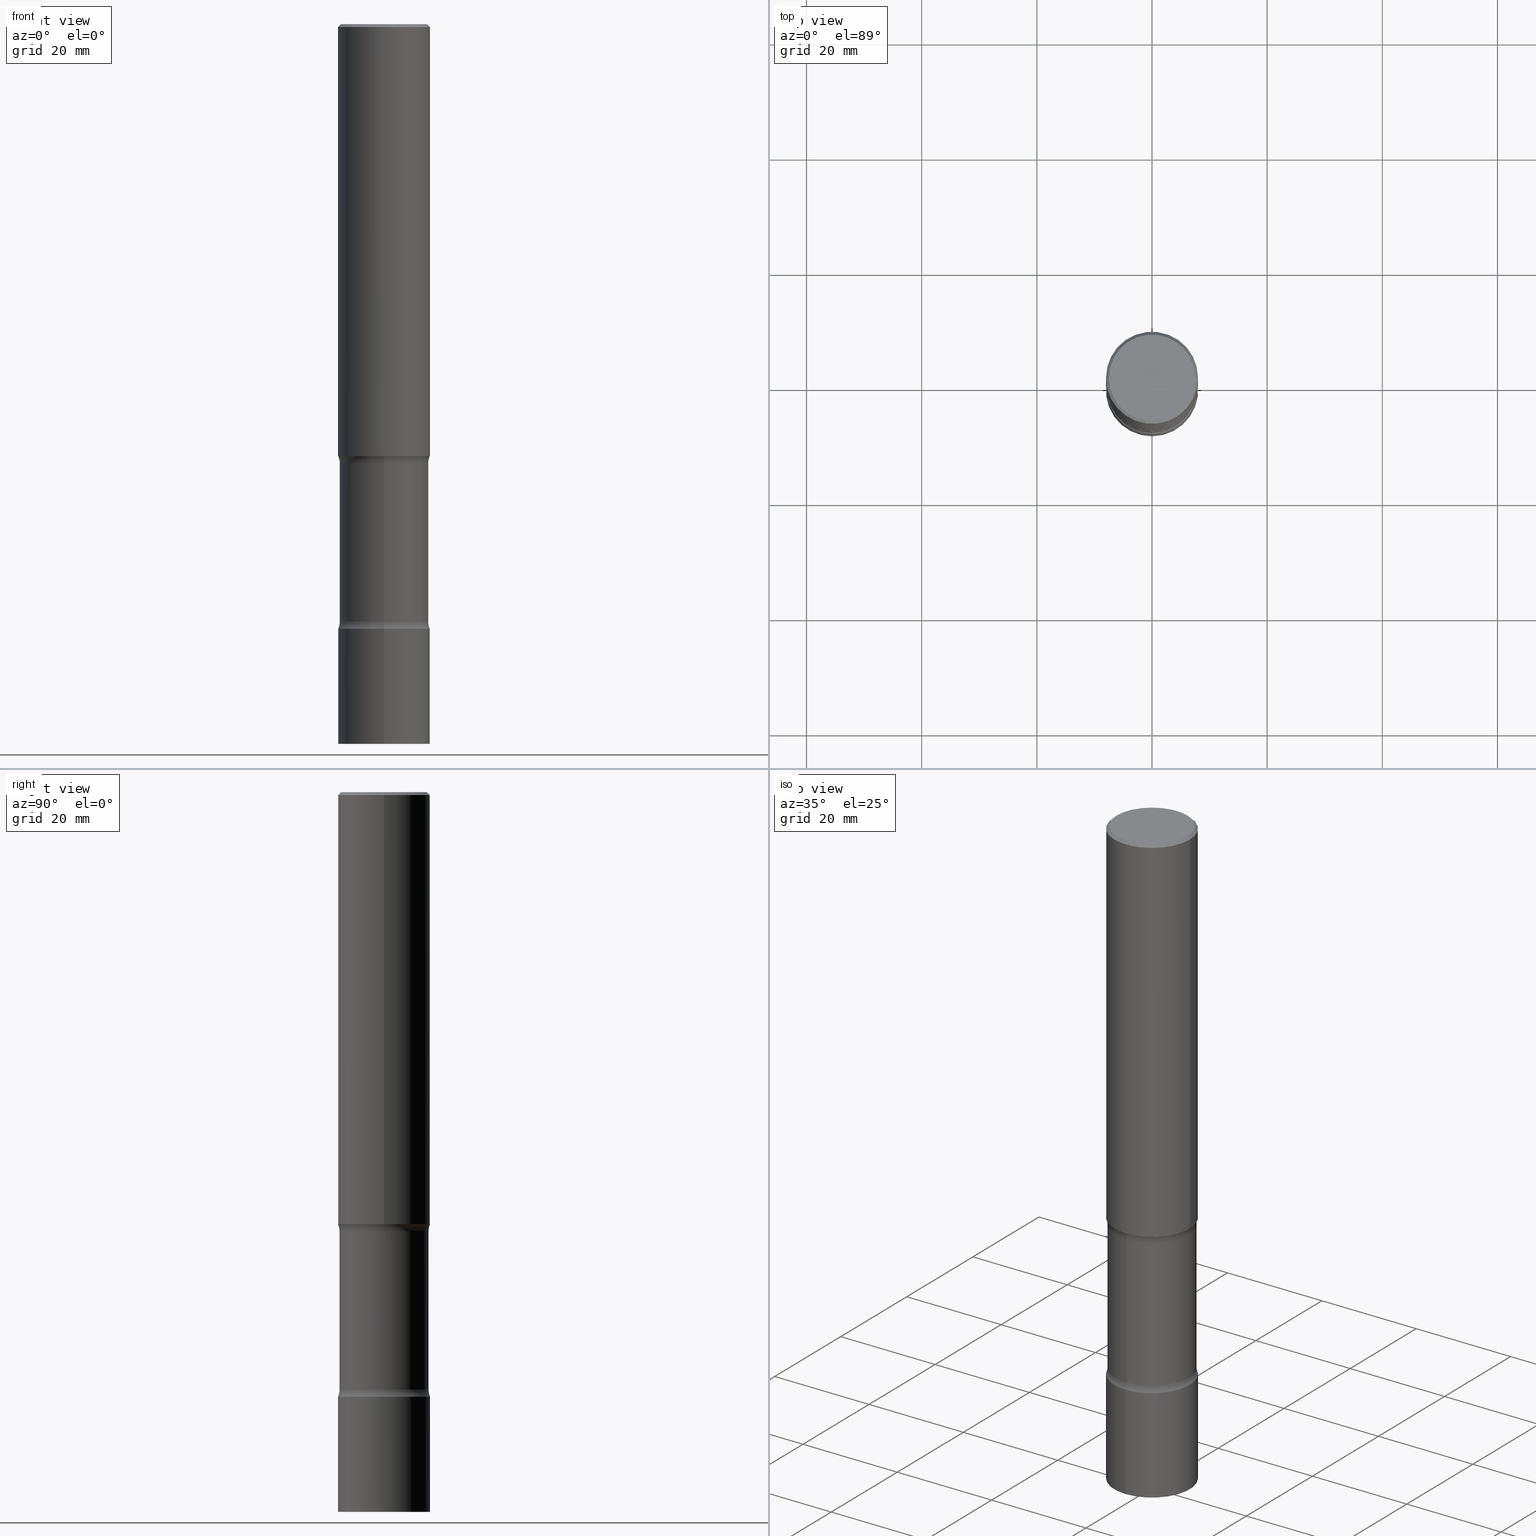
[diagram: canonical four-view strip — front | top / right | iso, engineering-drawing reading convention]
A machine part, canonical four-view strip (front | top / right | iso — engineering-drawing reading convention). The complete STEP part file that produces these views, byte-faithful:
ISO-10303-21;
HEADER;
FILE_DESCRIPTION (( 'STEP AP203' ),
    '1' );
FILE_NAME ('42710.STEP',
    '2024-03-11T13:32:46',
    ( '' ),
    ( '' ),
    'SwSTEP 2.0',
    'SolidWorks 2023',
    '' );
FILE_SCHEMA (( 'CONFIG_CONTROL_DESIGN' ));
ENDSEC;

DATA;
#1 = APPLICATION_PROTOCOL_DEFINITION ( 'international standard', 'config_control_design', 1994, #370 ) ;
#2 = CARTESIAN_POINT ( 'NONE',  ( 1.203946298913715486E-28, -1.717607208245619996E-14, -4.921299999999999564 ) ) ;
#3 = APPROVAL_STATUS ( 'not_yet_approved' ) ;
#4 = CARTESIAN_POINT ( 'NONE',  ( 1.010932349788873450E-28, -1.443343470664367755E-14, -4.133899999999999686 ) ) ;
#5 = SHAPE_DEFINITION_REPRESENTATION ( #73, #386 ) ;
#6 = DIRECTION ( 'NONE',  ( 2.446398916777508940E-29, -3.490149367536260622E-15, -1.000000000000000000 ) ) ;
#7 = EDGE_CURVE ( 'NONE', #234, #332, #438, .T. ) ;
#8 = CARTESIAN_POINT ( 'NONE',  ( 4.890937612370273159E-31, -6.982962677686291609E-17, -0.02000000000000000042 ) ) ;
#9 = EDGE_LOOP ( 'NONE', ( #26, #242 ) ) ;
#10 = APPROVAL_DATE_TIME ( #137, #71 ) ;
#11 = AXIS2_PLACEMENT_3D ( 'NONE', #166, #95, #19 ) ;
#12 = ORIENTED_EDGE ( 'NONE', *, *, #493, .T. ) ;
#13 = EDGE_CURVE ( 'NONE', #127, #64, #500, .T. ) ;
#14 = DIRECTION ( 'NONE',  ( 2.554481209903822320E-29, -3.335369372117288584E-15, -1.000000000000000000 ) ) ;
#15 = ORIENTED_EDGE ( 'NONE', *, *, #54, .F. ) ;
#16 = DIRECTION ( 'NONE',  ( -2.446398916777509220E-29, 3.490149367536260622E-15, 1.000000000000000000 ) ) ;
#17 = ORIENTED_EDGE ( 'NONE', *, *, #457, .F. ) ;
#18 = CC_DESIGN_PERSON_AND_ORGANIZATION_ASSIGNMENT ( #462, #265, ( #69 ) ) ;
#19 = DIRECTION ( 'NONE',  ( -1.000000000000000000, 6.982962677686266711E-15, 0.000000000000000000 ) ) ;
#20 = EDGE_LOOP ( 'NONE', ( #94, #467, #101, #92 ) ) ;
#21 = CIRCLE ( 'NONE', #495, 0.3149500000000000632 ) ;
#22 = CC_DESIGN_APPROVAL ( #71, ( #180 ) ) ;
#23 = DIRECTION ( 'NONE',  ( 6.982962677686265922E-15, 1.000000000000000000, -3.335369372117288584E-15 ) ) ;
#24 = DIRECTION ( 'NONE',  ( 1.000000000000000000, -6.982962677686265922E-15, 4.876176775795935232E-29 ) ) ;
#25 = DIRECTION ( 'NONE',  ( -2.446398916777509220E-29, 3.490149367536260622E-15, 1.000000000000000000 ) ) ;
#26 = ORIENTED_EDGE ( 'NONE', *, *, #427, .T. ) ;
#27 = ADVANCED_FACE ( 'NONE', ( #108 ), #118, .F. ) ;
#28 = CIRCLE ( 'NONE', #374, 0.1249999999999999584 ) ;
#29 = CARTESIAN_POINT ( 'NONE',  ( 7.220980290903469061E-29, -1.030964609733603695E-14, -2.952799999999998981 ) ) ;
#30 = DIRECTION ( 'NONE',  ( -2.445468806185136597E-29, 3.491481338843145583E-15, 1.000000000000000000 ) ) ;
#31 = DIRECTION ( 'NONE',  ( -1.000000000000000000, 6.982962677686265922E-15, -4.883557194083112340E-29 ) ) ;
#32 = DESIGN_CONTEXT ( 'detailed design', #437, 'design' ) ;
#33 = PERSON_AND_ORGANIZATION ( #217, #110 ) ;
#34 = DIRECTION ( 'NONE',  ( 2.438088387897960049E-29, -3.491481338843145188E-15, -1.000000000000000000 ) ) ;
#35 = AXIS2_PLACEMENT_3D ( 'NONE', #276, #476, #507 ) ;
#36 = LOCAL_TIME ( 9, 32, 46.00000000000000000, #160 ) ;
#37 = CARTESIAN_POINT ( 'NONE',  ( 4.890937612370273159E-31, -6.982962677686291609E-17, -0.02000000000000000042 ) ) ;
#38 = EDGE_CURVE ( 'NONE', #64, #361, #366, .T. ) ;
#39 = APPROVAL_STATUS ( 'not_yet_approved' ) ;
#40 = CARTESIAN_POINT ( 'NONE',  ( -2.199284095337289871E-15, -0.3149500000000000632, 1.099222543305545587E-15 ) ) ;
#41 = ORIENTED_EDGE ( 'NONE', *, *, #421, .F. ) ;
#42 = FACE_OUTER_BOUND ( 'NONE', #336, .T. ) ;
#43 = APPROVAL_STATUS ( 'not_yet_approved' ) ;
#44 = DIRECTION ( 'NONE',  ( -6.982962677686265922E-15, -1.000000000000000000, 3.335369372117288979E-15 ) ) ;
#45 = CIRCLE ( 'NONE', #472, 0.1249999999999999029 ) ;
#46 = PRODUCT_DEFINITION ( 'UNKNOWN', '', #69, #32 ) ;
#47 = CARTESIAN_POINT ( 'NONE',  ( -0.2949499999999997679, 2.094539655171993740E-15, 8.537024980186296424E-18 ) ) ;
#48 = EDGE_LOOP ( 'NONE', ( #212, #165 ) ) ;
#49 = DIRECTION ( 'NONE',  ( -6.982962677686265922E-15, -1.000000000000000000, 3.469564049740292375E-15 ) ) ;
#50 = ORIENTED_EDGE ( 'NONE', *, *, #7, .F. ) ;
#51 = DIRECTION ( 'NONE',  ( 2.554481209903822320E-29, -3.335369372117288584E-15, -1.000000000000000000 ) ) ;
#52 = AXIS2_PLACEMENT_3D ( 'NONE', #57, #356, #250 ) ;
#53 = ORIENTED_EDGE ( 'NONE', *, *, #353, .F. ) ;
#54 = EDGE_CURVE ( 'NONE', #492, #134, #218, .T. ) ;
#55 = CARTESIAN_POINT ( 'NONE',  ( 1.011316848206654349E-28, -1.442792847045814558E-14, -4.133899999999999686 ) ) ;
#56 = VERTEX_POINT ( 'NONE', #156 ) ;
#57 = CARTESIAN_POINT ( 'NONE',  ( -2.087702828670439639E-46, 2.980686340760894400E-32, 8.537024980200822558E-18 ) ) ;
#58 = EDGE_LOOP ( 'NONE', ( #53, #207, #323, #287 ) ) ;
#59 = CARTESIAN_POINT ( 'NONE',  ( 2.999531618200236480E-15, 0.4295499999999858876, -4.083981666694491253 ) ) ;
#60 = AXIS2_PLACEMENT_3D ( 'NONE', #306, #229, #504 ) ;
#61 = CIRCLE ( 'NONE', #496, 0.3149500000000002298 ) ;
#62 = VECTOR ( 'NONE', #120, 39.37007874015748143 ) ;
#63 = DIRECTION ( 'NONE',  ( 1.000000000000000000, -6.982962677686269866E-15, 0.000000000000000000 ) ) ;
#64 = VERTEX_POINT ( 'NONE', #72 ) ;
#65 = DIRECTION ( 'NONE',  ( 2.554481209903822320E-29, -3.335369372117288584E-15, -1.000000000000000000 ) ) ;
#66 = EDGE_CURVE ( 'NONE', #167, #157, #358, .T. ) ;
#67 = DIRECTION ( 'NONE',  ( 2.554481209903822320E-29, -3.335369372117288584E-15, -1.000000000000000000 ) ) ;
#68 = ORIENTED_EDGE ( 'NONE', *, *, #267, .T. ) ;
#69 = PRODUCT_DEFINITION_FORMATION_WITH_SPECIFIED_SOURCE ( 'ANY', '', #225, .NOT_KNOWN. ) ;
#70 = DIRECTION ( 'NONE',  ( 6.982962677686265922E-15, 1.000000000000000000, -3.469564049740292375E-15 ) ) ;
#71 = APPROVAL ( #39, 'UNSPECIFIED' ) ;
#72 = CARTESIAN_POINT ( 'NONE',  ( 2.126661283489454719E-15, 0.3045499999999861096, -4.083981666694490364 ) ) ;
#73 = PRODUCT_DEFINITION_SHAPE ( 'NONE', 'NONE',  #46 ) ;
#74 = ADVANCED_FACE ( 'NONE', ( #122 ), #352, .F. ) ;
#75 = PERSON_AND_ORGANIZATION ( #217, #110 ) ;
#76 = DIRECTION ( 'NONE',  ( -2.446398916777509220E-29, 3.490149367536260622E-15, 1.000000000000000000 ) ) ;
#77 = DATE_AND_TIME ( #194, #455 ) ;
#78 = AXIS2_PLACEMENT_3D ( 'NONE', #373, #258, #499 ) ;
#79 = LINE ( 'NONE', #425, #102 ) ;
#80 = EDGE_LOOP ( 'NONE', ( #330, #454, #402, #181 ) ) ;
#81 =( NAMED_UNIT ( * ) SI_UNIT ( $, .STERADIAN. ) SOLID_ANGLE_UNIT ( ) );
#82 = CARTESIAN_POINT ( 'NONE',  ( 0.3149499999999997302, -2.230543471175005083E-15, -0.02000000000000000042 ) ) ;
#83 = EDGE_CURVE ( 'NONE', #234, #134, #116, .T. ) ;
#84 = COORDINATED_UNIVERSAL_TIME_OFFSET ( 5, 0, .BEHIND. ) ;
#85 = DIRECTION ( 'NONE',  ( -2.445468806185136877E-29, 3.491481338843145188E-15, 1.000000000000000000 ) ) ;
#86 = CIRCLE ( 'NONE', #335, 0.3149500000000000632 ) ;
#87 = DIRECTION ( 'NONE',  ( -2.446398916777509220E-29, 3.490149367536260622E-15, 1.000000000000000000 ) ) ;
#88 = AXIS2_PLACEMENT_3D ( 'NONE', #8, #316, #364 ) ;
#89 = VERTEX_POINT ( 'NONE', #274 ) ;
#90 = APPROVAL ( #43, 'UNSPECIFIED' ) ;
#91 = LINE ( 'NONE', #484, #416 ) ;
#92 = ORIENTED_EDGE ( 'NONE', *, *, #315, .F. ) ;
#93 = DIRECTION ( 'NONE',  ( -2.446398916777509500E-29, 3.490149367536260622E-15, 1.000000000000000000 ) ) ;
#94 = ORIENTED_EDGE ( 'NONE', *, *, #351, .F. ) ;
#95 = DIRECTION ( 'NONE',  ( 2.445468806185136597E-29, -3.491481338843145583E-15, -1.000000000000000000 ) ) ;
#96 = AXIS2_PLACEMENT_3D ( 'NONE', #322, #478, #354 ) ;
#97 = ORIENTED_EDGE ( 'NONE', *, *, #268, .T. ) ;
#98 = AXIS2_PLACEMENT_3D ( 'NONE', #413, #333, #453 ) ;
#99 = DIRECTION ( 'NONE',  ( 2.554481209903822320E-29, -3.335369372117288584E-15, -1.000000000000000000 ) ) ;
#100 = ORIENTED_EDGE ( 'NONE', *, *, #227, .F. ) ;
#101 = ORIENTED_EDGE ( 'NONE', *, *, #143, .T. ) ;
#102 = VECTOR ( 'NONE', #85, 39.37007874015748143 ) ;
#103 = TOROIDAL_SURFACE ( 'NONE', #161, 0.4295500000000001539, 0.1249999999999999445 ) ;
#104 = CARTESIAN_POINT ( 'NONE',  ( 9.985653037607901887E-29, -1.426143239044380354E-14, -4.083981666694489476 ) ) ;
#105 = DIRECTION ( 'NONE',  ( 6.982962677686264344E-15, 1.000000000000000000, -3.469564049740290403E-15 ) ) ;
#106 = EDGE_CURVE ( 'NONE', #332, #492, #79, .T. ) ;
#107 = DIRECTION ( 'NONE',  ( 2.554481209903822320E-29, -3.335369372117288584E-15, -1.000000000000000000 ) ) ;
#108 = FACE_OUTER_BOUND ( 'NONE', #446, .T. ) ;
#109 = CLOSED_SHELL ( 'NONE', ( #255, #372, #501, #418, #123, #126, #27, #204 ) ) ;
#110 = ORGANIZATION ( 'UNSPECIFIED', 'UNSPECIFIED', '' ) ;
#111 = PERSON_AND_ORGANIZATION_ROLE ( 'design_supplier' ) ;
#112 = DATE_AND_TIME ( #302, #350 ) ;
#113 = DIRECTION ( 'NONE',  ( -2.446398916777509220E-29, 3.490149367536260622E-15, 1.000000000000000000 ) ) ;
#114 = UNCERTAINTY_MEASURE_WITH_UNIT (LENGTH_MEASURE( 1.000000000000000082E-05 ), #121, 'distance_accuracy_value', 'NONE');
#115 = DATE_AND_TIME ( #153, #36 ) ;
#116 = LINE ( 'NONE', #342, #344 ) ;
#117 = ORIENTED_EDGE ( 'NONE', *, *, #406, .F. ) ;
#118 = TOROIDAL_SURFACE ( 'NONE', #35, 0.4295500000000001539, 0.1249999999999999029 ) ;
#119 = APPROVAL_ROLE ( '' ) ;
#120 = DIRECTION ( 'NONE',  ( -2.446398916777509500E-29, 3.490149367536260622E-15, 1.000000000000000000 ) ) ;
#121 =( CONVERSION_BASED_UNIT ( 'INCH', #228 ) LENGTH_UNIT ( ) NAMED_UNIT ( #412 ) );
#122 = FACE_OUTER_BOUND ( 'NONE', #441, .T. ) ;
#123 = ADVANCED_FACE ( 'NONE', ( #423 ), #388, .F. ) ;
#124 = ORIENTED_EDGE ( 'NONE', *, *, #427, .F. ) ;
#125 = CARTESIAN_POINT ( 'NONE',  ( 0.2949499999999997679, -2.127023677808858103E-15, 8.537024980215462707E-18 ) ) ;
#126 = ADVANCED_FACE ( 'NONE', ( #383 ), #309, .F. ) ;
#127 = VERTEX_POINT ( 'NONE', #164 ) ;
#128 = AXIS2_PLACEMENT_3D ( 'NONE', #360, #277, #325 ) ;
#129 = CARTESIAN_POINT ( 'NONE',  ( 2.237854346276435590E-15, 0.3149500000000000632, -1.099222543305545587E-15 ) ) ;
#130 = CC_DESIGN_SECURITY_CLASSIFICATION ( #180, ( #69 ) ) ;
#131 = ORIENTED_EDGE ( 'NONE', *, *, #351, .T. ) ;
#132 = ADVANCED_FACE ( 'NONE', ( #378 ), #191, .T. ) ;
#133 = DIRECTION ( 'NONE',  ( -6.982962677686265922E-15, -1.000000000000000000, 3.490149367536261016E-15 ) ) ;
#134 = VERTEX_POINT ( 'NONE', #82 ) ;
#135 = DIRECTION ( 'NONE',  ( 6.982962677686265922E-15, 1.000000000000000000, -3.335369372117288584E-15 ) ) ;
#136 = ORIENTED_EDGE ( 'NONE', *, *, #176, .F. ) ;
#137 = DATE_AND_TIME ( #393, #147 ) ;
#138 = CYLINDRICAL_SURFACE ( 'NONE', #461, 0.3045500000000003205 ) ;
#139 = AXIS2_PLACEMENT_3D ( 'NONE', #55, #329, #49 ) ;
#140 = EDGE_LOOP ( 'NONE', ( #479, #223, #12, #477 ) ) ;
#141 = CYLINDRICAL_SURFACE ( 'NONE', #187, 0.3149500000000000632 ) ;
#142 = ORIENTED_EDGE ( 'NONE', *, *, #464, .T. ) ;
#143 = EDGE_CURVE ( 'NONE', #248, #89, #314, .T. ) ;
#144 = DIRECTION ( 'NONE',  ( 6.982962677686264344E-15, 1.000000000000000000, -3.469564049740290403E-15 ) ) ;
#145 = CARTESIAN_POINT ( 'NONE',  ( 7.096070725049138811E-29, -1.048852370505041414E-14, -2.952799999999998981 ) ) ;
#146 = AXIS2_PLACEMENT_3D ( 'NONE', #312, #6, #475 ) ;
#147 = LOCAL_TIME ( 9, 32, 46.00000000000000000, #273 ) ;
#148 = CARTESIAN_POINT ( 'NONE',  ( -0.3149499999999997302, 2.129454468560424995E-15, -0.02000000000000000042 ) ) ;
#149 = DIRECTION ( 'NONE',  ( 6.982962677686265922E-15, 1.000000000000000000, -3.588045304435082954E-15 ) ) ;
#150 = DATE_AND_TIME ( #422, #272 ) ;
#151 = AXIS2_PLACEMENT_3D ( 'NONE', #269, #34, #466 ) ;
#152 = AXIS2_PLACEMENT_3D ( 'NONE', #29, #295, #456 ) ;
#153 = CALENDAR_DATE ( 2024, 11, 3 ) ;
#154 = CARTESIAN_POINT ( 'NONE',  ( 1.010932349788873450E-28, -1.443343470664367755E-14, -4.133899999999999686 ) ) ;
#155 = PERSON_AND_ORGANIZATION ( #217, #110 ) ;
#156 = CARTESIAN_POINT ( 'NONE',  ( 2.199284095337391634E-15, 0.3149499999999857414, -4.133900000000000574 ) ) ;
#157 = VERTEX_POINT ( 'NONE', #235 ) ;
#158 = CARTESIAN_POINT ( 'NONE',  ( 1.203946298913715486E-28, -1.717607208245619996E-14, -4.921299999999999564 ) ) ;
#159 = VECTOR ( 'NONE', #334, 39.37007874015748143 ) ;
#160 = COORDINATED_UNIVERSAL_TIME_OFFSET ( 5, 0, .BEHIND. ) ;
#161 = AXIS2_PLACEMENT_3D ( 'NONE', #407, #182, #371 ) ;
#162 = DIRECTION ( 'NONE',  ( 2.446398916777508940E-29, -3.490149367536260622E-15, -1.000000000000000000 ) ) ;
#163 = EDGE_CURVE ( 'NONE', #490, #56, #245, .T. ) ;
#164 = CARTESIAN_POINT ( 'NONE',  ( 2.126661283489426320E-15, 0.3045499999999895513, -3.002718333305510523 ) ) ;
#165 = ORIENTED_EDGE ( 'NONE', *, *, #403, .F. ) ;
#166 = CARTESIAN_POINT ( 'NONE',  ( 4.890937612370273159E-31, -6.982962677686291609E-17, -0.02000000000000000042 ) ) ;
#167 = VERTEX_POINT ( 'NONE', #347 ) ;
#168 = AXIS2_PLACEMENT_3D ( 'NONE', #237, #233, #264 ) ;
#169 = FACE_OUTER_BOUND ( 'NONE', #202, .T. ) ;
#170 = APPROVAL_PERSON_ORGANIZATION ( #387, #90, #340 ) ;
#171 = ORIENTED_EDGE ( 'NONE', *, *, #66, .T. ) ;
#172 = EDGE_CURVE ( 'NONE', #294, #248, #86, .T. ) ;
#173 = FACE_OUTER_BOUND ( 'NONE', #80, .T. ) ;
#174 = ORIENTED_EDGE ( 'NONE', *, *, #304, .T. ) ;
#175 = DIRECTION ( 'NONE',  ( 6.982962677686264344E-15, 1.000000000000000000, -3.588045304435081376E-15 ) ) ;
#176 = EDGE_CURVE ( 'NONE', #248, #294, #279, .T. ) ;
#177 = ORIENTED_EDGE ( 'NONE', *, *, #315, .T. ) ;
#178 = CARTESIAN_POINT ( 'NONE',  ( 2.199284095337361657E-15, 0.3149499999999896827, -2.952800000000000313 ) ) ;
#179 = AXIS2_PLACEMENT_3D ( 'NONE', #37, #385, #196 ) ;
#180 = SECURITY_CLASSIFICATION ( '', '', #506 ) ;
#181 = ORIENTED_EDGE ( 'NONE', *, *, #464, .F. ) ;
#182 = DIRECTION ( 'NONE',  ( 2.554481209903822320E-29, -3.335369372117288584E-15, -1.000000000000000000 ) ) ;
#183 = ORIENTED_EDGE ( 'NONE', *, *, #38, .F. ) ;
#184 = LINE ( 'NONE', #148, #159 ) ;
#185 = ADVANCED_FACE ( 'NONE', ( #380 ), #343, .T. ) ;
#186 = FACE_OUTER_BOUND ( 'NONE', #140, .T. ) ;
#187 = AXIS2_PLACEMENT_3D ( 'NONE', #458, #25, #215 ) ;
#188 = ADVANCED_FACE ( 'NONE', ( #42 ), #199, .F. ) ;
#189 = DIRECTION ( 'NONE',  ( -1.000000000000000000, 6.982962677686265922E-15, -4.883557194083112340E-29 ) ) ;
#190 = CARTESIAN_POINT ( 'NONE',  ( 7.247672054954499305E-29, -1.062052742622159086E-14, -3.002718333305509191 ) ) ;
#191 = PLANE ( 'NONE',  #146 ) ;
#192 = VECTOR ( 'NONE', #486, 39.37007874015748143 ) ;
#193 = CIRCLE ( 'NONE', #78, 0.2949499999999997679 ) ;
#194 = CALENDAR_DATE ( 2024, 11, 3 ) ;
#195 = AXIS2_PLACEMENT_3D ( 'NONE', #349, #201, #345 ) ;
#196 = DIRECTION ( 'NONE',  ( -1.000000000000000000, 6.982962677686266711E-15, 0.000000000000000000 ) ) ;
#197 = EDGE_LOOP ( 'NONE', ( #449, #68, #183, #355 ) ) ;
#198 = DIRECTION ( 'NONE',  ( 2.554481209903822320E-29, -3.335369372117288584E-15, -1.000000000000000000 ) ) ;
#199 = PLANE ( 'NONE',  #327 ) ;
#200 = CIRCLE ( 'NONE', #88, 0.3149499999999997302 ) ;
#201 = DIRECTION ( 'NONE',  ( -2.445468806185136597E-29, 3.491481338843145583E-15, 1.000000000000000000 ) ) ;
#202 = EDGE_LOOP ( 'NONE', ( #270, #434, #363, #15 ) ) ;
#203 = CYLINDRICAL_SURFACE ( 'NONE', #96, 0.3149499999999998967 ) ;
#204 = ADVANCED_FACE ( 'NONE', ( #482 ), #138, .T. ) ;
#205 = ORIENTED_EDGE ( 'NONE', *, *, #403, .T. ) ;
#206 = CARTESIAN_POINT ( 'NONE',  ( 0.000000000000000000, 0.000000000000000000, 0.000000000000000000 ) ) ;
#207 = ORIENTED_EDGE ( 'NONE', *, *, #285, .F. ) ;
#208 = FACE_OUTER_BOUND ( 'NONE', #58, .T. ) ;
#209 = APPROVAL_PERSON_ORGANIZATION ( #348, #240, #275 ) ;
#210 = EDGE_LOOP ( 'NONE', ( #485, #171, #205, #429 ) ) ;
#211 = LINE ( 'NONE', #129, #400 ) ;
#212 = ORIENTED_EDGE ( 'NONE', *, *, #508, .F. ) ;
#213 = CARTESIAN_POINT ( 'NONE',  ( 2.237854346276546425E-15, 0.3149499999999829103, -4.921300000000000452 ) ) ;
#214 = EDGE_LOOP ( 'NONE', ( #136, #321 ) ) ;
#215 = DIRECTION ( 'NONE',  ( -6.982962677686265922E-15, -1.000000000000000000, 3.490149367536261016E-15 ) ) ;
#216 = AXIS2_PLACEMENT_3D ( 'NONE', #494, #253, #24 ) ;
#217 = PERSON ( 'UNSPECIFIED', 'UNSPECIFIED', 'UNSPECIFIED', ('UNSPECIFIED'), ('UNSPECIFIED'), ('UNSPECIFIED') ) ;
#218 = CIRCLE ( 'NONE', #195, 0.3149499999999997302 ) ;
#219 = CARTESIAN_POINT ( 'NONE',  ( 2.999531618200208870E-15, 0.4295499999999894958, -3.002718333305510967 ) ) ;
#220 = ADVANCED_FACE ( 'NONE', ( #208 ), #426, .T. ) ;
#221 = DIRECTION ( 'NONE',  ( -6.982962677686265133E-15, -1.000000000000000000, 0.000000000000000000 ) ) ;
#222 = DIRECTION ( 'NONE',  ( 2.554481209903822320E-29, -3.335369372117288584E-15, -1.000000000000000000 ) ) ;
#223 = ORIENTED_EDGE ( 'NONE', *, *, #468, .F. ) ;
#224 = CIRCLE ( 'NONE', #262, 0.3045500000000003760 ) ;
#225 = PRODUCT ( '42710', '42710', '', ( #473 ) ) ;
#226 = PLANE ( 'NONE',  #152 ) ;
#227 = EDGE_CURVE ( 'NONE', #490, #361, #502, .T. ) ;
#228 = LENGTH_MEASURE_WITH_UNIT ( LENGTH_MEASURE( 0.02539999999999999897 ), #369 );
#229 = DIRECTION ( 'NONE',  ( 1.000000000000000000, -6.860497997771530774E-15, 4.842710699827736789E-29 ) ) ;
#230 = DIRECTION ( 'NONE',  ( 1.000000000000000000, 0.000000000000000000, 0.000000000000000000 ) ) ;
#231 = DIRECTION ( 'NONE',  ( -6.982962677686265922E-15, -1.000000000000000000, 3.469564049740292375E-15 ) ) ;
#232 = DATE_TIME_ROLE ( 'classification_date' ) ;
#233 = DIRECTION ( 'NONE',  ( 2.554481209903821760E-29, -3.335369372117288979E-15, -1.000000000000000000 ) ) ;
#234 = VERTEX_POINT ( 'NONE', #362 ) ;
#235 = CARTESIAN_POINT ( 'NONE',  ( -2.160713844398074337E-15, -0.3149500000000106659, -2.952799999999998093 ) ) ;
#236 = DATE_TIME_ROLE ( 'creation_date' ) ;
#237 = CARTESIAN_POINT ( 'NONE',  ( 7.220980290903469061E-29, -1.030964609733603695E-14, -2.952799999999998981 ) ) ;
#238 = CIRCLE ( 'NONE', #410, 0.3149500000000002298 ) ;
#239 = CARTESIAN_POINT ( 'NONE',  ( 2.237854346276555892E-15, 0.3149499999999856859, -4.133900000000000574 ) ) ;
#240 = APPROVAL ( #3, 'UNSPECIFIED' ) ;
#241 = CYLINDRICAL_SURFACE ( 'NONE', #310, 0.3149500000000000632 ) ;
#242 = ORIENTED_EDGE ( 'NONE', *, *, #163, .T. ) ;
#243 = FACE_OUTER_BOUND ( 'NONE', #436, .T. ) ;
#244 = ORIENTED_EDGE ( 'NONE', *, *, #394, .T. ) ;
#245 = CIRCLE ( 'NONE', #261, 0.3149500000000000632 ) ;
#246 = LINE ( 'NONE', #401, #192 ) ;
#247 = AXIS2_PLACEMENT_3D ( 'NONE', #190, #222, #23 ) ;
#248 = VERTEX_POINT ( 'NONE', #445 ) ;
#249 = ADVANCED_FACE ( 'NONE', ( #169 ), #203, .T. ) ;
#250 = DIRECTION ( 'NONE',  ( 1.000000000000000000, -6.982962677686265922E-15, 4.876053491004738270E-29 ) ) ;
#251 = EDGE_LOOP ( 'NONE', ( #451, #244, #483, #17 ) ) ;
#252 = ADVANCED_FACE ( 'NONE', ( #320 ), #241, .T. ) ;
#253 = DIRECTION ( 'NONE',  ( -2.445468806185136597E-29, 3.491481338843145583E-15, 1.000000000000000000 ) ) ;
#254 = ORIENTED_EDGE ( 'NONE', *, *, #83, .F. ) ;
#255 = ADVANCED_FACE ( 'NONE', ( #404 ), #435, .T. ) ;
#256 = CC_DESIGN_PERSON_AND_ORGANIZATION_ASSIGNMENT ( #75, #111, ( #69 ) ) ;
#257 = DIRECTION ( 'NONE',  ( -6.982962677686264344E-15, -1.000000000000000000, 0.000000000000000000 ) ) ;
#258 = DIRECTION ( 'NONE',  ( -2.445468806185136597E-29, 3.491481338843145583E-15, 1.000000000000000000 ) ) ;
#259 = ORIENTED_EDGE ( 'NONE', *, *, #143, .F. ) ;
#260 = CARTESIAN_POINT ( 'NONE',  ( -0.3149499999999997302, 2.129454468560424995E-15, -0.02000000000000000042 ) ) ;
#261 = AXIS2_PLACEMENT_3D ( 'NONE', #303, #198, #465 ) ;
#262 = AXIS2_PLACEMENT_3D ( 'NONE', #104, #65, #293 ) ;
#263 = PERSON_AND_ORGANIZATION ( #217, #110 ) ;
#264 = DIRECTION ( 'NONE',  ( 6.982962677686265922E-15, 1.000000000000000000, -3.335369372117288979E-15 ) ) ;
#265 = PERSON_AND_ORGANIZATION_ROLE ( 'creator' ) ;
#266 = DIRECTION ( 'NONE',  ( -6.982962677686265922E-15, -1.000000000000000000, 3.469564049740292375E-15 ) ) ;
#267 = EDGE_CURVE ( 'NONE', #167, #361, #246, .T. ) ;
#268 = EDGE_CURVE ( 'NONE', #89, #326, #21, .T. ) ;
#269 = CARTESIAN_POINT ( 'NONE',  ( 2.059624841783562486E-15, 0.2949499999999997679, -1.025543908401684366E-15 ) ) ;
#270 = ORIENTED_EDGE ( 'NONE', *, *, #106, .F. ) ;
#271 = CIRCLE ( 'NONE', #52, 0.2949499999999997679 ) ;
#272 = LOCAL_TIME ( 9, 32, 46.00000000000000000, #84 ) ;
#273 = COORDINATED_UNIVERSAL_TIME_OFFSET ( 5, 0, .BEHIND. ) ;
#274 = CARTESIAN_POINT ( 'NONE',  ( -2.199284095337188897E-15, -0.3149500000000144961, -4.133899999999997910 ) ) ;
#275 = APPROVAL_ROLE ( '' ) ;
#276 = CARTESIAN_POINT ( 'NONE',  ( 9.987249770933356913E-29, -1.425914577744133572E-14, -4.083981666694489476 ) ) ;
#277 = DIRECTION ( 'NONE',  ( 1.000000000000000000, -6.860497997771530774E-15, 4.842710699827736789E-29 ) ) ;
#278 = MANIFOLD_SOLID_BREP ( 'Body-Move/Copy2[4]', #109 ) ;
#279 = CIRCLE ( 'NONE', #389, 0.3149500000000000632 ) ;
#280 = AXIS2_PLACEMENT_3D ( 'NONE', #430, #377, #230 ) ;
#281 = DIRECTION ( 'NONE',  ( 6.982962677686265922E-15, 1.000000000000000000, -3.490149367536260622E-15 ) ) ;
#282 = ORIENTED_EDGE ( 'NONE', *, *, #421, .T. ) ;
#283 = CARTESIAN_POINT ( 'NONE',  ( -0.3149500000000000077, -2.951883515780012562E-15, -2.952799999999998981 ) ) ;
#284 = EDGE_LOOP ( 'NONE', ( #41, #444, #174, #117 ) ) ;
#285 = EDGE_CURVE ( 'NONE', #357, #317, #271, .T. ) ;
#286 = DIRECTION ( 'NONE',  ( -6.982962677686265922E-15, -1.000000000000000000, 3.469564049740292375E-15 ) ) ;
#287 = ORIENTED_EDGE ( 'NONE', *, *, #54, .T. ) ;
#288 = MANIFOLD_SOLID_BREP ( 'Body-Move/Copy2[1]', #399 ) ;
#289 = CIRCLE ( 'NONE', #480, 0.3045500000000002094 ) ;
#290 = DIRECTION ( 'NONE',  ( 6.982962677686264344E-15, 1.000000000000000000, -3.588045304435081376E-15 ) ) ;
#291 = CC_DESIGN_DATE_AND_TIME_ASSIGNMENT ( #150, #236, ( #46 ) ) ;
#292 = VERTEX_POINT ( 'NONE', #178 ) ;
#293 = DIRECTION ( 'NONE',  ( 6.982962677686265922E-15, 1.000000000000000000, -3.588045304435081376E-15 ) ) ;
#294 = VERTEX_POINT ( 'NONE', #213 ) ;
#295 = DIRECTION ( 'NONE',  ( -2.438088387897960049E-29, 3.491481338843145188E-15, 1.000000000000000000 ) ) ;
#296 = AXIS2_PLACEMENT_3D ( 'NONE', #395, #14, #175 ) ;
#297 = CIRCLE ( 'NONE', #367, 0.3149500000000000632 ) ;
#298 = FACE_OUTER_BOUND ( 'NONE', #398, .T. ) ;
#299 = DIRECTION ( 'NONE',  ( 2.554481209903822320E-29, -3.335369372117288584E-15, -1.000000000000000000 ) ) ;
#300 = CARTESIAN_POINT ( 'NONE',  ( 2.126661283489475624E-15, 0.3045499999999832785, -4.921299999999999564 ) ) ;
#301 = APPROVAL_DATE_TIME ( #112, #90 ) ;
#302 = CALENDAR_DATE ( 2024, 11, 3 ) ;
#303 = CARTESIAN_POINT ( 'NONE',  ( 1.011316848206654349E-28, -1.442792847045814558E-14, -4.133899999999999686 ) ) ;
#304 = EDGE_CURVE ( 'NONE', #134, #492, #200, .T. ) ;
#305 = PERSON_AND_ORGANIZATION_ROLE ( 'design_owner' ) ;
#306 = CARTESIAN_POINT ( 'NONE',  ( -2.946926914942689755E-15, -0.4295500000000108121, -3.002718333305507858 ) ) ;
#307 = ORIENTED_EDGE ( 'NONE', *, *, #38, .T. ) ;
#308 = COORDINATED_UNIVERSAL_TIME_OFFSET ( 5, 0, .BEHIND. ) ;
#309 = PLANE ( 'NONE',  #481 ) ;
#310 = AXIS2_PLACEMENT_3D ( 'NONE', #206, #16, #133 ) ;
#311 = TOROIDAL_SURFACE ( 'NONE', #319, 0.4295500000000001539, 0.1249999999999999029 ) ;
#312 = CARTESIAN_POINT ( 'NONE',  ( 1.116405737123649585E-30, -3.425739267083567016E-14, -4.921299999999998676 ) ) ;
#313 = ORIENTED_EDGE ( 'NONE', *, *, #285, .T. ) ;
#314 = LINE ( 'NONE', #40, #62 ) ;
#315 = EDGE_CURVE ( 'NONE', #326, #89, #488, .T. ) ;
#316 = DIRECTION ( 'NONE',  ( -2.445468806185136597E-29, 3.491481338843145583E-15, 1.000000000000000000 ) ) ;
#317 = VERTEX_POINT ( 'NONE', #125 ) ;
#318 = CLOSED_SHELL ( 'NONE', ( #391, #185, #220, #74, #439, #249 ) ) ;
#319 = AXIS2_PLACEMENT_3D ( 'NONE', #397, #51, #135 ) ;
#320 = FACE_OUTER_BOUND ( 'NONE', #346, .T. ) ;
#321 = ORIENTED_EDGE ( 'NONE', *, *, #172, .F. ) ;
#322 = CARTESIAN_POINT ( 'NONE',  ( 0.000000000000000000, 0.000000000000000000, 0.000000000000000000 ) ) ;
#323 = ORIENTED_EDGE ( 'NONE', *, *, #406, .T. ) ;
#324 = PRODUCT_RELATED_PRODUCT_CATEGORY ( 'detail', '', ( #225 ) ) ;
#325 = DIRECTION ( 'NONE',  ( 6.860497997771531562E-15, 1.000000000000000000, 0.000000000000000000 ) ) ;
#326 = VERTEX_POINT ( 'NONE', #239 ) ;
#327 = AXIS2_PLACEMENT_3D ( 'NONE', #4, #162, #281 ) ;
#328 = AXIS2_PLACEMENT_3D ( 'NONE', #459, #376, #63 ) ;
#329 = DIRECTION ( 'NONE',  ( -2.446398916777509220E-29, 3.490149367536260622E-15, 1.000000000000000000 ) ) ;
#330 = ORIENTED_EDGE ( 'NONE', *, *, #163, .F. ) ;
#331 = CARTESIAN_POINT ( 'NONE',  ( 1.011316848206654349E-28, -1.442792847045814558E-14, -4.133899999999999686 ) ) ;
#332 = VERTEX_POINT ( 'NONE', #283 ) ;
#333 = DIRECTION ( 'NONE',  ( 2.554481209903822320E-29, -3.335369372117288584E-15, -1.000000000000000000 ) ) ;
#334 = DIRECTION ( 'NONE',  ( -0.7071067811865472397, 2.468850131082253905E-15, -0.7071067811865477948 ) ) ;
#335 = AXIS2_PLACEMENT_3D ( 'NONE', #2, #113, #266 ) ;
#336 = EDGE_LOOP ( 'NONE', ( #97, #177 ) ) ;
#337 = CARTESIAN_POINT ( 'NONE',  ( 7.223586169507781532E-29, -1.065501978506475776E-14, -3.002718333305509191 ) ) ;
#338 = DIRECTION ( 'NONE',  ( 1.000000000000000000, -6.982962677686269866E-15, 0.000000000000000000 ) ) ;
#339 = CC_DESIGN_PERSON_AND_ORGANIZATION_ASSIGNMENT ( #33, #305, ( #225 ) ) ;
#340 = APPROVAL_ROLE ( '' ) ;
#341 =( NAMED_UNIT ( * ) PLANE_ANGLE_UNIT ( ) SI_UNIT ( $, .RADIAN. ) );
#342 = CARTESIAN_POINT ( 'NONE',  ( 0.3149499999999998967, -2.199284095337288688E-15, 1.535751875536929289E-29 ) ) ;
#343 = CONICAL_SURFACE ( 'NONE', #179, 0.3149499999999997302, 0.7853981633974479459 ) ;
#344 = VECTOR ( 'NONE', #433, 39.37007874015748143 ) ;
#345 = DIRECTION ( 'NONE',  ( 1.000000000000000000, -6.982962677686266711E-15, 0.000000000000000000 ) ) ;
#346 = EDGE_LOOP ( 'NONE', ( #396, #131, #405, #259 ) ) ;
#347 = CARTESIAN_POINT ( 'NONE',  ( -2.125039254809661718E-15, -0.3045500000000108676, -3.002718333305508303 ) ) ;
#348 = PERSON_AND_ORGANIZATION ( #217, #110 ) ;
#349 = CARTESIAN_POINT ( 'NONE',  ( 4.890937612370273159E-31, -6.982962677686291609E-17, -0.02000000000000000042 ) ) ;
#350 = LOCAL_TIME ( 9, 32, 46.00000000000000000, #308 ) ;
#351 = EDGE_CURVE ( 'NONE', #294, #326, #211, .T. ) ;
#352 = PLANE ( 'NONE',  #151 ) ;
#353 = EDGE_CURVE ( 'NONE', #317, #134, #91, .T. ) ;
#354 = DIRECTION ( 'NONE',  ( 1.000000000000000000, -6.982962677686265922E-15, 4.876176775795935232E-29 ) ) ;
#355 = ORIENTED_EDGE ( 'NONE', *, *, #13, .F. ) ;
#356 = DIRECTION ( 'NONE',  ( -2.445468806185136597E-29, 3.491481338843145583E-15, 1.000000000000000000 ) ) ;
#357 = VERTEX_POINT ( 'NONE', #47 ) ;
#358 = CIRCLE ( 'NONE', #60, 0.1249999999999999584 ) ;
#359 = CC_DESIGN_APPROVAL ( #240, ( #46 ) ) ;
#360 = CARTESIAN_POINT ( 'NONE',  ( -2.946926914942662145E-15, -0.4295500000000144203, -4.083981666694487700 ) ) ;
#361 = VERTEX_POINT ( 'NONE', #440 ) ;
#362 = CARTESIAN_POINT ( 'NONE',  ( 0.3149500000000000077, -1.250893019267332682E-14, -2.952799999999998981 ) ) ;
#363 = ORIENTED_EDGE ( 'NONE', *, *, #83, .T. ) ;
#364 = DIRECTION ( 'NONE',  ( 1.000000000000000000, -6.982962677686266711E-15, 0.000000000000000000 ) ) ;
#365 = ORIENTED_EDGE ( 'NONE', *, *, #474, .F. ) ;
#366 = CIRCLE ( 'NONE', #471, 0.3045500000000003760 ) ;
#367 = AXIS2_PLACEMENT_3D ( 'NONE', #331, #67, #70 ) ;
#368 = FACE_OUTER_BOUND ( 'NONE', #210, .T. ) ;
#369 =( LENGTH_UNIT ( ) NAMED_UNIT ( * ) SI_UNIT ( $, .METRE. ) );
#370 = APPLICATION_CONTEXT ( 'configuration controlled 3d designs of mechanical parts and assemblies' ) ;
#371 = DIRECTION ( 'NONE',  ( 6.982962677686265922E-15, 1.000000000000000000, -3.335369372117288584E-15 ) ) ;
#372 = ADVANCED_FACE ( 'NONE', ( #173 ), #311, .F. ) ;
#373 = CARTESIAN_POINT ( 'NONE',  ( -2.087702828670439639E-46, 2.980686340760894400E-32, 8.537024980200822558E-18 ) ) ;
#374 = AXIS2_PLACEMENT_3D ( 'NONE', #219, #31, #221 ) ;
#375 = CARTESIAN_POINT ( 'NONE',  ( 7.220980290903469061E-29, -1.030964609733603695E-14, -2.952799999999998981 ) ) ;
#376 = DIRECTION ( 'NONE',  ( -2.445468806185136597E-29, 3.491481338843145583E-15, 1.000000000000000000 ) ) ;
#377 = DIRECTION ( 'NONE',  ( 0.000000000000000000, 0.000000000000000000, 1.000000000000000000 ) ) ;
#378 = FACE_OUTER_BOUND ( 'NONE', #214, .T. ) ;
#379 = APPLICATION_PROTOCOL_DEFINITION ( 'international standard', 'config_control_design', 1994, #437 ) ;
#380 = FACE_OUTER_BOUND ( 'NONE', #284, .T. ) ;
#381 =( GEOMETRIC_REPRESENTATION_CONTEXT ( 3 ) GLOBAL_UNCERTAINTY_ASSIGNED_CONTEXT ( ( #114 ) ) GLOBAL_UNIT_ASSIGNED_CONTEXT ( ( #121, #341, #81 ) ) REPRESENTATION_CONTEXT ( 'NONE', 'WORKASPACE' ) );
#382 = PERSON_AND_ORGANIZATION ( #217, #110 ) ;
#383 = FACE_OUTER_BOUND ( 'NONE', #9, .T. ) ;
#384 = ORIENTED_EDGE ( 'NONE', *, *, #7, .T. ) ;
#385 = DIRECTION ( 'NONE',  ( 2.445468806185136597E-29, -3.491481338843145583E-15, -1.000000000000000000 ) ) ;
#386 = ADVANCED_BREP_SHAPE_REPRESENTATION ( '42710', ( #288, #452, #278, #280 ), #381 ) ;
#387 = PERSON_AND_ORGANIZATION ( #217, #110 ) ;
#388 = PLANE ( 'NONE',  #168 ) ;
#389 = AXIS2_PLACEMENT_3D ( 'NONE', #158, #76, #231 ) ;
#390 = CC_DESIGN_APPROVAL ( #90, ( #69 ) ) ;
#391 = ADVANCED_FACE ( 'NONE', ( #243 ), #415, .T. ) ;
#392 = DIRECTION ( 'NONE',  ( 0.7071067811865472397, -7.319954787623254468E-15, -0.7071067811865477948 ) ) ;
#393 = CALENDAR_DATE ( 2024, 11, 3 ) ;
#394 = EDGE_CURVE ( 'NONE', #167, #127, #428, .T. ) ;
#395 = CARTESIAN_POINT ( 'NONE',  ( 1.212456698674481103E-28, -1.705419831406329672E-14, -4.921299999999998676 ) ) ;
#396 = ORIENTED_EDGE ( 'NONE', *, *, #176, .T. ) ;
#397 = CARTESIAN_POINT ( 'NONE',  ( 9.987249770933356913E-29, -1.425914577744133572E-14, -4.083981666694489476 ) ) ;
#398 = EDGE_LOOP ( 'NONE', ( #50, #365 ) ) ;
#399 = CLOSED_SHELL ( 'NONE', ( #252, #450, #188, #132 ) ) ;
#400 = VECTOR ( 'NONE', #93, 39.37007874015748143 ) ;
#401 = CARTESIAN_POINT ( 'NONE',  ( -2.089364665221200584E-15, -0.3045500000000173624, -4.921299999999997787 ) ) ;
#402 = ORIENTED_EDGE ( 'NONE', *, *, #457, .T. ) ;
#403 = EDGE_CURVE ( 'NONE', #157, #292, #238, .T. ) ;
#404 = FACE_OUTER_BOUND ( 'NONE', #197, .T. ) ;
#405 = ORIENTED_EDGE ( 'NONE', *, *, #268, .F. ) ;
#406 = EDGE_CURVE ( 'NONE', #357, #492, #184, .T. ) ;
#407 = CARTESIAN_POINT ( 'NONE',  ( 7.247672054954499305E-29, -1.062052742622159086E-14, -3.002718333305509191 ) ) ;
#408 = CC_DESIGN_PERSON_AND_ORGANIZATION_ASSIGNMENT ( #155, #432, ( #46 ) ) ;
#409 = VECTOR ( 'NONE', #460, 39.37007874015748143 ) ;
#410 = AXIS2_PLACEMENT_3D ( 'NONE', #145, #299, #105 ) ;
#411 = AXIS2_PLACEMENT_3D ( 'NONE', #375, #30, #338 ) ;
#412 = DIMENSIONAL_EXPONENTS ( 1.000000000000000000, 0.000000000000000000, 0.000000000000000000, 0.000000000000000000, 0.000000000000000000, 0.000000000000000000, 0.000000000000000000 ) ;
#413 = CARTESIAN_POINT ( 'NONE',  ( 7.223586169507781532E-29, -1.065501978506475776E-14, -3.002718333305509191 ) ) ;
#414 = CARTESIAN_POINT ( 'NONE',  ( -2.160713844398043572E-15, -0.3149500000000146072, -4.133899999999997910 ) ) ;
#415 = CYLINDRICAL_SURFACE ( 'NONE', #216, 0.3149499999999998967 ) ;
#416 = VECTOR ( 'NONE', #392, 39.37007874015748143 ) ;
#417 = CARTESIAN_POINT ( 'NONE',  ( 9.985653037607901887E-29, -1.426143239044380354E-14, -4.083981666694489476 ) ) ;
#418 = ADVANCED_FACE ( 'NONE', ( #186 ), #503, .F. ) ;
#419 = PERSON_AND_ORGANIZATION_ROLE ( 'classification_officer' ) ;
#420 = DIRECTION ( 'NONE',  ( 6.982962677686265922E-15, 1.000000000000000000, -3.588045304435081376E-15 ) ) ;
#421 = EDGE_CURVE ( 'NONE', #317, #357, #193, .T. ) ;
#422 = CALENDAR_DATE ( 2024, 11, 3 ) ;
#423 = FACE_OUTER_BOUND ( 'NONE', #48, .T. ) ;
#424 = APPROVAL_DATE_TIME ( #115, #240 ) ;
#425 = CARTESIAN_POINT ( 'NONE',  ( -0.3149499999999998967, 2.237854346276434801E-15, -1.549218606675782116E-29 ) ) ;
#426 = CONICAL_SURFACE ( 'NONE', #11, 0.3149499999999997302, 0.7853981633974479459 ) ;
#427 = EDGE_CURVE ( 'NONE', #56, #490, #297, .T. ) ;
#428 = CIRCLE ( 'NONE', #98, 0.3045500000000002094 ) ;
#429 = ORIENTED_EDGE ( 'NONE', *, *, #493, .F. ) ;
#430 = CARTESIAN_POINT ( 'NONE',  ( 0.000000000000000000, 0.000000000000000000, 0.000000000000000000 ) ) ;
#431 = DIRECTION ( 'NONE',  ( 2.554481209903822320E-29, -3.335369372117288584E-15, -1.000000000000000000 ) ) ;
#432 = PERSON_AND_ORGANIZATION_ROLE ( 'creator' ) ;
#433 = DIRECTION ( 'NONE',  ( -2.445468806185136877E-29, 3.491481338843145188E-15, 1.000000000000000000 ) ) ;
#434 = ORIENTED_EDGE ( 'NONE', *, *, #474, .T. ) ;
#435 = CYLINDRICAL_SURFACE ( 'NONE', #296, 0.3045500000000003205 ) ;
#436 = EDGE_LOOP ( 'NONE', ( #384, #498, #487, #254 ) ) ;
#437 = APPLICATION_CONTEXT ( 'configuration controlled 3d designs of mechanical parts and assemblies' ) ;
#438 = CIRCLE ( 'NONE', #411, 0.3149500000000000077 ) ;
#439 = ADVANCED_FACE ( 'NONE', ( #298 ), #226, .F. ) ;
#440 = CARTESIAN_POINT ( 'NONE',  ( -2.125039254809633319E-15, -0.3045500000000146423, -4.083981666694487700 ) ) ;
#441 = EDGE_LOOP ( 'NONE', ( #313, #282 ) ) ;
#442 = CC_DESIGN_DATE_AND_TIME_ASSIGNMENT ( #77, #232, ( #180 ) ) ;
#443 = CARTESIAN_POINT ( 'NONE',  ( 1.212456698674481103E-28, -1.705419831406329672E-14, -4.921299999999998676 ) ) ;
#444 = ORIENTED_EDGE ( 'NONE', *, *, #353, .T. ) ;
#445 = CARTESIAN_POINT ( 'NONE',  ( -2.199284095337169570E-15, -0.3149500000000172162, -4.921299999999998676 ) ) ;
#446 = EDGE_LOOP ( 'NONE', ( #100, #124, #142, #307 ) ) ;
#447 = CIRCLE ( 'NONE', #328, 0.3149500000000000077 ) ;
#448 = CARTESIAN_POINT ( 'NONE',  ( 1.011316848206654349E-28, -1.442792847045814558E-14, -4.133899999999999686 ) ) ;
#449 = ORIENTED_EDGE ( 'NONE', *, *, #468, .T. ) ;
#450 = ADVANCED_FACE ( 'NONE', ( #497 ), #141, .T. ) ;
#451 = ORIENTED_EDGE ( 'NONE', *, *, #267, .F. ) ;
#452 = MANIFOLD_SOLID_BREP ( 'Body-Move/Copy2[2]', #318 ) ;
#453 = DIRECTION ( 'NONE',  ( 6.982962677686265922E-15, 1.000000000000000000, -3.588045304435082954E-15 ) ) ;
#454 = ORIENTED_EDGE ( 'NONE', *, *, #227, .T. ) ;
#455 = LOCAL_TIME ( 9, 32, 46.00000000000000000, #469 ) ;
#456 = DIRECTION ( 'NONE',  ( 1.000000000000000000, -6.982962677686265922E-15, 4.876176775795935793E-29 ) ) ;
#457 = EDGE_CURVE ( 'NONE', #361, #64, #224, .T. ) ;
#458 = CARTESIAN_POINT ( 'NONE',  ( 0.000000000000000000, 0.000000000000000000, 0.000000000000000000 ) ) ;
#459 = CARTESIAN_POINT ( 'NONE',  ( 7.220980290903469061E-29, -1.030964609733603695E-14, -2.952799999999998981 ) ) ;
#460 = DIRECTION ( 'NONE',  ( 2.554481209903822320E-29, -3.335369372117288979E-15, -1.000000000000000000 ) ) ;
#461 = AXIS2_PLACEMENT_3D ( 'NONE', #443, #99, #290 ) ;
#462 = PERSON_AND_ORGANIZATION ( #217, #110 ) ;
#463 = APPROVAL_PERSON_ORGANIZATION ( #382, #71, #119 ) ;
#464 = EDGE_CURVE ( 'NONE', #56, #64, #45, .T. ) ;
#465 = DIRECTION ( 'NONE',  ( 6.982962677686265922E-15, 1.000000000000000000, -3.469564049740292375E-15 ) ) ;
#466 = DIRECTION ( 'NONE',  ( -1.000000000000000000, 6.982962677686265922E-15, -4.876176775795935793E-29 ) ) ;
#467 = ORIENTED_EDGE ( 'NONE', *, *, #172, .T. ) ;
#468 = EDGE_CURVE ( 'NONE', #127, #167, #289, .T. ) ;
#469 = COORDINATED_UNIVERSAL_TIME_OFFSET ( 5, 0, .BEHIND. ) ;
#470 = DIRECTION ( 'NONE',  ( -2.554481209903821760E-29, 3.335369372117288979E-15, 1.000000000000000000 ) ) ;
#471 = AXIS2_PLACEMENT_3D ( 'NONE', #417, #431, #420 ) ;
#472 = AXIS2_PLACEMENT_3D ( 'NONE', #59, #189, #257 ) ;
#473 = MECHANICAL_CONTEXT ( 'NONE', #370, 'mechanical' ) ;
#474 = EDGE_CURVE ( 'NONE', #332, #234, #447, .T. ) ;
#475 = DIRECTION ( 'NONE',  ( 6.982962677686265922E-15, 1.000000000000000000, -3.490149367536260622E-15 ) ) ;
#476 = DIRECTION ( 'NONE',  ( 2.554481209903822320E-29, -3.335369372117288584E-15, -1.000000000000000000 ) ) ;
#477 = ORIENTED_EDGE ( 'NONE', *, *, #508, .T. ) ;
#478 = DIRECTION ( 'NONE',  ( -2.445468806185136597E-29, 3.491481338843145583E-15, 1.000000000000000000 ) ) ;
#479 = ORIENTED_EDGE ( 'NONE', *, *, #66, .F. ) ;
#480 = AXIS2_PLACEMENT_3D ( 'NONE', #337, #107, #149 ) ;
#481 = AXIS2_PLACEMENT_3D ( 'NONE', #154, #470, #44 ) ;
#482 = FACE_OUTER_BOUND ( 'NONE', #251, .T. ) ;
#483 = ORIENTED_EDGE ( 'NONE', *, *, #13, .T. ) ;
#484 = CARTESIAN_POINT ( 'NONE',  ( 0.3149499999999997302, -2.230543471175005083E-15, -0.02000000000000000042 ) ) ;
#485 = ORIENTED_EDGE ( 'NONE', *, *, #394, .F. ) ;
#486 = DIRECTION ( 'NONE',  ( 2.554481209903822320E-29, -3.335369372117288979E-15, -1.000000000000000000 ) ) ;
#487 = ORIENTED_EDGE ( 'NONE', *, *, #304, .F. ) ;
#488 = CIRCLE ( 'NONE', #139, 0.3149500000000000632 ) ;
#489 = CARTESIAN_POINT ( 'NONE',  ( 7.096070725049138811E-29, -1.048852370505041414E-14, -2.952799999999998981 ) ) ;
#490 = VERTEX_POINT ( 'NONE', #414 ) ;
#491 = DIRECTION ( 'NONE',  ( 2.554481209903822320E-29, -3.335369372117288584E-15, -1.000000000000000000 ) ) ;
#492 = VERTEX_POINT ( 'NONE', #260 ) ;
#493 = EDGE_CURVE ( 'NONE', #127, #292, #28, .T. ) ;
#494 = CARTESIAN_POINT ( 'NONE',  ( 0.000000000000000000, 0.000000000000000000, 0.000000000000000000 ) ) ;
#495 = AXIS2_PLACEMENT_3D ( 'NONE', #448, #87, #286 ) ;
#496 = AXIS2_PLACEMENT_3D ( 'NONE', #489, #491, #144 ) ;
#497 = FACE_OUTER_BOUND ( 'NONE', #20, .T. ) ;
#498 = ORIENTED_EDGE ( 'NONE', *, *, #106, .T. ) ;
#499 = DIRECTION ( 'NONE',  ( 1.000000000000000000, -6.982962677686265922E-15, 4.876053491004738270E-29 ) ) ;
#500 = LINE ( 'NONE', #300, #409 ) ;
#501 = ADVANCED_FACE ( 'NONE', ( #368 ), #103, .F. ) ;
#502 = CIRCLE ( 'NONE', #128, 0.1249999999999999029 ) ;
#503 = TOROIDAL_SURFACE ( 'NONE', #247, 0.4295500000000001539, 0.1249999999999999445 ) ;
#504 = DIRECTION ( 'NONE',  ( 6.860497997771529985E-15, 1.000000000000000000, 0.000000000000000000 ) ) ;
#505 = CC_DESIGN_PERSON_AND_ORGANIZATION_ASSIGNMENT ( #263, #419, ( #180 ) ) ;
#506 = SECURITY_CLASSIFICATION_LEVEL ( 'unclassified' ) ;
#507 = DIRECTION ( 'NONE',  ( 6.982962677686265922E-15, 1.000000000000000000, -3.335369372117288584E-15 ) ) ;
#508 = EDGE_CURVE ( 'NONE', #292, #157, #61, .T. ) ;
ENDSEC;
END-ISO-10303-21;
